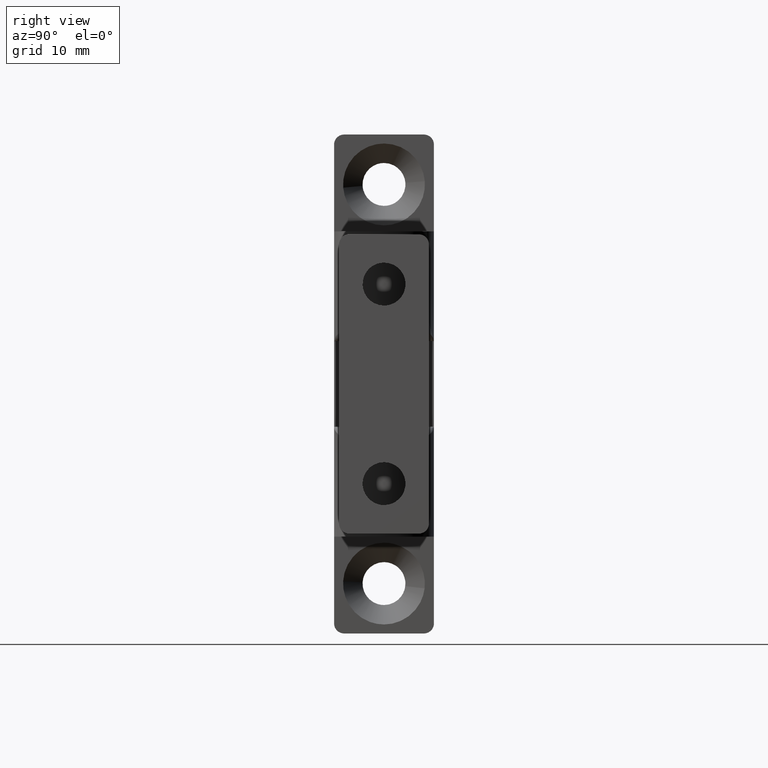
[diagram: clean part render]
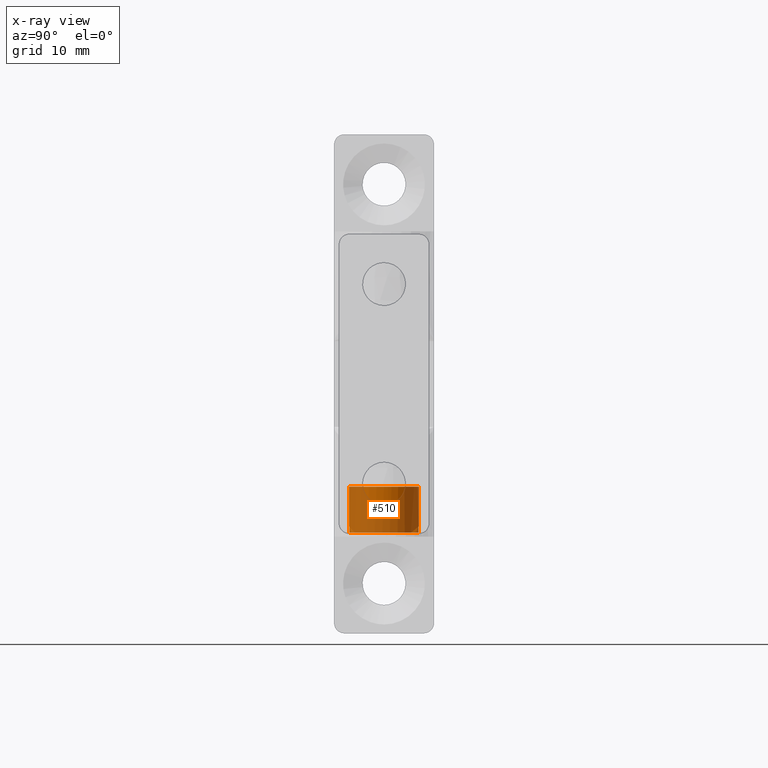
[diagram: x-ray — body ghosted, one internal face saturated and labeled with its STEP entity id]
A machine part, right view, then the same camera in x-ray: the body is ghosted and one INTERNAL B-rep face — a face not visible from any outside direction — is saturated and labeled: STEP entity #510.
In plain terms, the highlighted face is a freeform B-spline surface patch.
Its self-contained STEP definition (entity closure, byte-faithful):
#333=CARTESIAN_POINT('',(-15.015000000000001,-2.787066602368499,9.617134798250243));
#334=CARTESIAN_POINT('',(-15.014999999999997,-4.786390131829754,6.985158865070981));
#335=CARTESIAN_POINT('',(-15.015000000000001,-2.273068169155641,4.838579120399892));
#336=CARTESIAN_POINT('',(-15.014999999999997,0.388352710444466,2.565510951244251));
#337=CARTESIAN_POINT('',(-15.015000000000001,2.661420879600108,5.226931830844359));
#338=CARTESIAN_POINT('',(-15.014999999999997,4.934489048755750,7.888352710444466));
#339=CARTESIAN_POINT('',(-15.015000000000001,2.273068169155641,10.161420879600110));
#340=CARTESIAN_POINT('',(-10.182124999999999,-2.787066602368499,9.617134798250243));
#341=CARTESIAN_POINT('',(-10.182124999999999,-4.786390131829754,6.985158865070981));
#342=CARTESIAN_POINT('',(-10.182124999999999,-2.273068169155641,4.838579120399892));
#343=CARTESIAN_POINT('',(-10.182124999999999,0.388352710444466,2.565510951244251));
#344=CARTESIAN_POINT('',(-10.182124999999999,2.661420879600108,5.226931830844359));
#345=CARTESIAN_POINT('',(-10.182124999999999,4.934489048755750,7.888352710444466));
#346=CARTESIAN_POINT('',(-10.182124999999999,2.273068169155641,10.161420879600110));
#354=(BOUNDED_SURFACE()B_SPLINE_SURFACE(2,1,((#333,#340),(#334,#341),(#335,#342),(#336,#343),(#337,#344),(#338,#345),(#339,#346)),.UNSPECIFIED.,.F.,.F.,.U.)B_SPLINE_SURFACE_WITH_KNOTS((3,2,2,3),(2,2),(0.0,5.567030278294396,11.366020151517720,17.165010024741051),(0.0,4.832875000000006),.UNSPECIFIED.)GEOMETRIC_REPRESENTATION_ITEM()RATIONAL_B_SPLINE_SURFACE(((0.977505800795127,0.977505800795127),(0.718822509939086,0.718822509939086),(1.0,1.0),(0.707106781186548,0.707106781186548),(1.0,1.0),(0.707106781186548,0.707106781186548),(1.0,1.0)))REPRESENTATION_ITEM('')SURFACE());
#355=CARTESIAN_POINT('',(-14.900000000000119,-2.787068418849338,9.617132406970246));
#356=VERTEX_POINT('',#355);
#357=CARTESIAN_POINT('',(-14.900000000000000,-3.464101615137755,8.0));
#358=VERTEX_POINT('',#357);
#359=CARTESIAN_POINT('',(-14.900000000000119,-2.787068418849338,9.617132406970246));
#360=CARTESIAN_POINT('',(-14.900000000000000,-3.334755236925471,8.896137995354774));
#361=CARTESIAN_POINT('',(-14.900000000000000,-3.464101615137754,8.000000000000002));
#369=(BOUNDED_CURVE()B_SPLINE_CURVE(2,(#359,#360,#361),.UNSPECIFIED.,.F.,.U.)B_SPLINE_CURVE_WITH_KNOTS((3,3),(0.819799910282316,1.0),.UNSPECIFIED.)CURVE()GEOMETRIC_REPRESENTATION_ITEM()RATIONAL_B_SPLINE_CURVE((0.887477440056849,0.912036748350072,1.0))REPRESENTATION_ITEM(''));
#370=EDGE_CURVE('',#356,#358,#369,.T.);
#371=ORIENTED_EDGE('',*,*,#370,.T.);
#372=CARTESIAN_POINT('',(-14.300000000000001,-3.464101615137755,8.0));
#373=VERTEX_POINT('',#372);
#374=CARTESIAN_POINT('',(-14.900000000000000,-3.464101615137755,8.0));
#375=CARTESIAN_POINT('',(-14.300000000000001,-3.464101615137755,8.0));
#376=QUASI_UNIFORM_CURVE('',1,(#374,#375),.UNSPECIFIED.,.F.,.U.);
#377=EDGE_CURVE('',#358,#373,#376,.T.);
#378=ORIENTED_EDGE('',*,*,#377,.T.);
#379=CARTESIAN_POINT('',(-14.300000000000001,-3.464101000000000,7.0));
#380=VERTEX_POINT('',#379);
#381=CARTESIAN_POINT('',(-14.300000000000001,-3.464101000000000,7.0));
#382=CARTESIAN_POINT('',(-14.299999999999997,-3.536270405194145,7.499999955606252));
#383=CARTESIAN_POINT('',(-14.300000000000001,-3.464101615137755,8.000000000000002));
#391=(BOUNDED_CURVE()B_SPLINE_CURVE(2,(#381,#382,#383),.UNSPECIFIED.,.F.,.U.)CURVE()GEOMETRIC_REPRESENTATION_ITEM()QUASI_UNIFORM_CURVE()RATIONAL_B_SPLINE_CURVE((1.0,0.989743316817382,1.0))REPRESENTATION_ITEM(''));
#392=EDGE_CURVE('',#380,#373,#391,.T.);
#393=ORIENTED_EDGE('',*,*,#392,.F.);
#394=CARTESIAN_POINT('',(-14.900000000000000,-3.464101000000000,7.0));
#395=VERTEX_POINT('',#394);
#396=CARTESIAN_POINT('',(-14.900000000000000,-3.464101000000000,7.0));
#397=CARTESIAN_POINT('',(-14.300000000000001,-3.464101000000000,7.0));
#398=QUASI_UNIFORM_CURVE('',1,(#396,#397),.UNSPECIFIED.,.F.,.U.);
#399=EDGE_CURVE('',#395,#380,#398,.T.);
#400=ORIENTED_EDGE('',*,*,#399,.F.);
#401=CARTESIAN_POINT('',(-14.900000000000000,3.464101615137755,7.0));
#402=VERTEX_POINT('',#401);
#403=CARTESIAN_POINT('',(-14.900000000000000,-3.464101000000000,7.0));
#404=CARTESIAN_POINT('',(-14.899999999999997,-3.031088830861000,3.999999961948217));
#405=CARTESIAN_POINT('',(-14.900000000000000,0.000000043938417,4.0));
#406=CARTESIAN_POINT('',(-14.899999999999997,3.031088918737835,4.000000038051786));
#407=CARTESIAN_POINT('',(-14.900000000000000,3.464101615137754,6.999999999999997));
#415=(BOUNDED_CURVE()B_SPLINE_CURVE(2,(#403,#404,#405,#406,#407),.UNSPECIFIED.,.F.,.U.)B_SPLINE_CURVE_WITH_KNOTS((3,2,3),(0.0,0.500000000000000,1.0),.UNSPECIFIED.)CURVE()GEOMETRIC_REPRESENTATION_ITEM()RATIONAL_B_SPLINE_CURVE((1.0,0.755928950127661,1.0,0.755928950127661,1.0))REPRESENTATION_ITEM(''));
#416=EDGE_CURVE('',#395,#402,#415,.T.);
#417=ORIENTED_EDGE('',*,*,#416,.T.);
#418=CARTESIAN_POINT('',(-14.300000000000001,3.464101615137755,7.0));
#419=VERTEX_POINT('',#418);
#420=CARTESIAN_POINT('',(-14.900000000000000,3.464101615137755,7.0));
#421=CARTESIAN_POINT('',(-14.300000000000001,3.464101615137755,7.0));
#422=QUASI_UNIFORM_CURVE('',1,(#420,#421),.UNSPECIFIED.,.F.,.U.);
#423=EDGE_CURVE('',#402,#419,#422,.T.);
#424=ORIENTED_EDGE('',*,*,#423,.T.);
#425=CARTESIAN_POINT('',(-14.300000000000001,3.464101615137755,8.0));
#426=VERTEX_POINT('',#425);
#427=CARTESIAN_POINT('',(-14.300000000000001,3.464101615137754,8.000000000000002));
#428=CARTESIAN_POINT('',(-14.300000000000006,3.536270398786458,7.500000000000001));
#429=CARTESIAN_POINT('',(-14.300000000000001,3.464101615137755,7.000000000000002));
#437=(BOUNDED_CURVE()B_SPLINE_CURVE(2,(#427,#428,#429),.UNSPECIFIED.,.F.,.U.)CURVE()GEOMETRIC_REPRESENTATION_ITEM()QUASI_UNIFORM_CURVE()RATIONAL_B_SPLINE_CURVE((1.0,0.989743318610787,1.0))REPRESENTATION_ITEM(''));
#438=EDGE_CURVE('',#426,#419,#437,.T.);
#439=ORIENTED_EDGE('',*,*,#438,.F.);
#440=CARTESIAN_POINT('',(-14.900000000000000,3.464101615137755,8.0));
#441=VERTEX_POINT('',#440);
#442=CARTESIAN_POINT('',(-14.900000000000000,3.464101615137755,8.0));
#443=CARTESIAN_POINT('',(-14.300000000000001,3.464101615137755,8.0));
#444=QUASI_UNIFORM_CURVE('',1,(#442,#443),.UNSPECIFIED.,.F.,.U.);
#445=EDGE_CURVE('',#441,#426,#444,.T.);
#446=ORIENTED_EDGE('',*,*,#445,.F.);
#447=CARTESIAN_POINT('',(-14.900000000000110,2.273068042642130,10.161420987652850));
#448=VERTEX_POINT('',#447);
#449=CARTESIAN_POINT('',(-14.900000000000000,3.464101615137755,8.0));
#450=CARTESIAN_POINT('',(-14.899999999999995,3.275731628515755,9.305065549801494));
#451=CARTESIAN_POINT('',(-14.900000000000103,2.273068042642129,10.161420987652846));
#459=(BOUNDED_CURVE()B_SPLINE_CURVE(2,(#449,#450,#451),.UNSPECIFIED.,.F.,.U.)B_SPLINE_CURVE_WITH_KNOTS((3,3),(0.0,0.252302071877812),.UNSPECIFIED.)CURVE()GEOMETRIC_REPRESENTATION_ITEM()RATIONAL_B_SPLINE_CURVE((1.0,0.876840734790110,0.877974820713836))REPRESENTATION_ITEM(''));
#460=EDGE_CURVE('',#441,#448,#459,.T.);
#461=ORIENTED_EDGE('',*,*,#460,.T.);
#462=CARTESIAN_POINT('',(-10.300000000000001,2.273066306420871,10.161422470523640));
#463=VERTEX_POINT('',#462);
#464=CARTESIAN_POINT('',(-14.900000000000110,2.273068042642130,10.161420987652850));
#465=CARTESIAN_POINT('',(-10.300000000000001,2.273066306420871,10.161422470523640));
#466=QUASI_UNIFORM_CURVE('',1,(#464,#465),.UNSPECIFIED.,.F.,.U.);
#467=EDGE_CURVE('',#448,#463,#466,.T.);
#468=ORIENTED_EDGE('',*,*,#467,.T.);
#469=CARTESIAN_POINT('',(-10.300000000000001,0.0,4.0));
#470=VERTEX_POINT('',#469);
#471=CARTESIAN_POINT('',(-10.300000000000001,2.273066306420871,10.161422470523643));
#472=CARTESIAN_POINT('',(-10.300000000000001,3.500000000000000,9.113523585633152));
#473=CARTESIAN_POINT('',(-10.300000000000001,3.500000000000000,7.500000000000000));
#474=CARTESIAN_POINT('',(-10.300000000000001,3.500000000000000,4.0));
#475=CARTESIAN_POINT('',(-10.300000000000001,0.0,4.0));
#483=(BOUNDED_CURVE()B_SPLINE_CURVE(2,(#471,#472,#473,#474,#475),.UNSPECIFIED.,.F.,.U.)B_SPLINE_CURVE_WITH_KNOTS((3,2,3),(0.613143055579297,0.750000000000000,1.0),.UNSPECIFIED.)CURVE()GEOMETRIC_REPRESENTATION_ITEM()RATIONAL_B_SPLINE_CURVE((0.854871055147548,0.839662116126586,1.0,0.707106781186547,1.0))REPRESENTATION_ITEM(''));
#484=EDGE_CURVE('',#463,#470,#483,.T.);
#485=ORIENTED_EDGE('',*,*,#484,.T.);
#486=CARTESIAN_POINT('',(-10.300000000000001,-2.787068525172748,9.617132267002063));
#487=VERTEX_POINT('',#486);
#488=CARTESIAN_POINT('',(-10.300000000000001,0.0,4.0));
#489=CARTESIAN_POINT('',(-10.300000000000001,-3.500000000000000,4.0));
#490=CARTESIAN_POINT('',(-10.300000000000001,-3.500000000000000,7.500000000000000));
#491=CARTESIAN_POINT('',(-10.299999999999999,-3.500000000000000,8.678603812705433));
#492=CARTESIAN_POINT('',(-10.300000000000001,-2.787068525172747,9.617132267002063));
#500=(BOUNDED_CURVE()B_SPLINE_CURVE(2,(#488,#489,#490,#491,#492),.UNSPECIFIED.,.F.,.U.)B_SPLINE_CURVE_WITH_KNOTS((3,2,3),(0.0,0.250000000000000,0.354483234059489),.UNSPECIFIED.)CURVE()GEOMETRIC_REPRESENTATION_ITEM()RATIONAL_B_SPLINE_CURVE((1.0,0.707106781186547,1.0,0.877590277057108,0.857498663981411))REPRESENTATION_ITEM(''));
#501=EDGE_CURVE('',#470,#487,#500,.T.);
#502=ORIENTED_EDGE('',*,*,#501,.T.);
#503=CARTESIAN_POINT('',(-14.900000000000119,-2.787068418849338,9.617132406970246));
#504=CARTESIAN_POINT('',(-10.300000000000001,-2.787068525172748,9.617132267002063));
#505=QUASI_UNIFORM_CURVE('',1,(#503,#504),.UNSPECIFIED.,.F.,.U.);
#506=EDGE_CURVE('',#356,#487,#505,.T.);
#507=ORIENTED_EDGE('',*,*,#506,.F.);
#508=EDGE_LOOP('',(#371,#378,#393,#400,#417,#424,#439,#446,#461,#468,#485,#502,#507));
#509=FACE_OUTER_BOUND('',#508,.T.);
#510=ADVANCED_FACE('',(#509),#354,.T.);